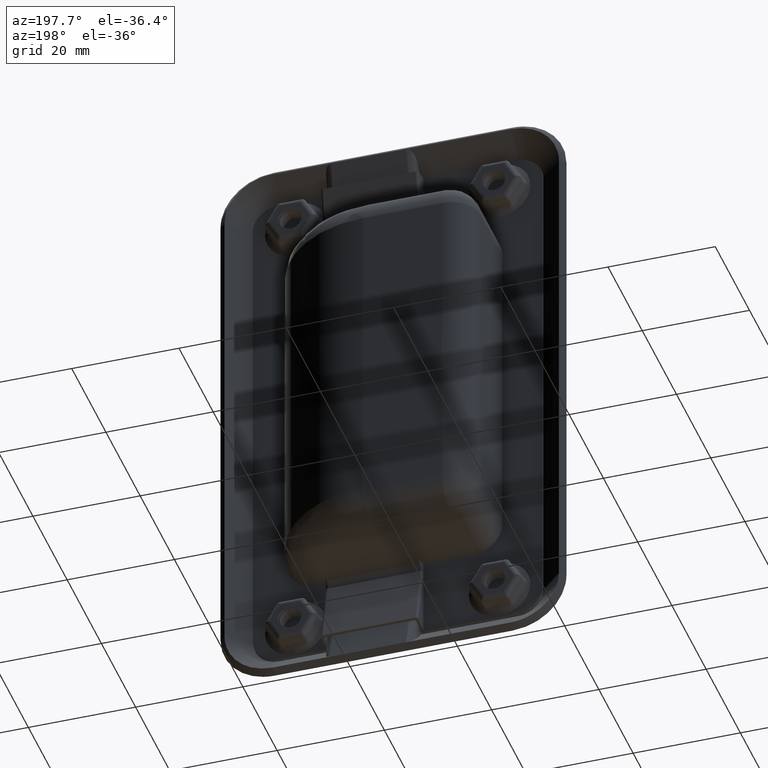
[diagram: clean part render]
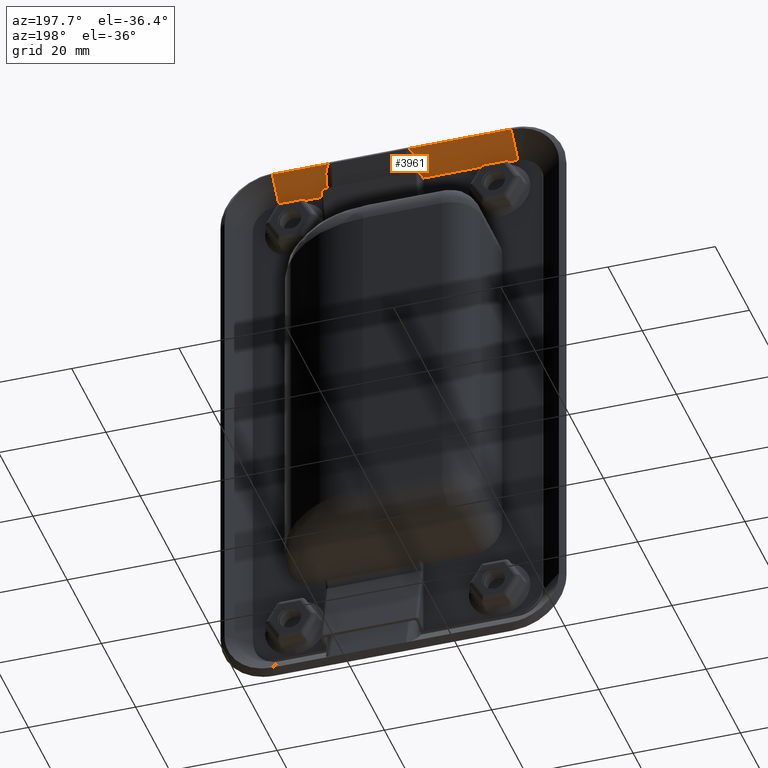
[diagram: same view with one face highlighted and labeled with its STEP entity id]
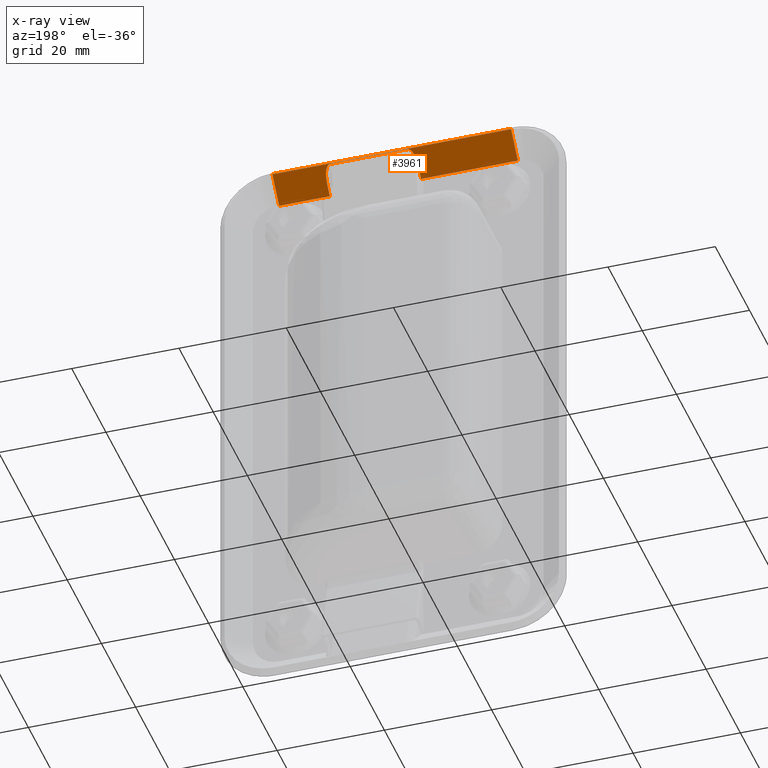
[diagram: x-ray of the same camera — body ghosted, the highlighted face saturated]
A machine part, auxiliary view. The second image highlights one B-rep face of the part: STEP entity #3961.
The next image is the same camera in x-ray: the body ghosted, the highlighted face saturated — about 0% of this face is hidden behind the body in this view.
In plain terms, the highlighted face is a freeform B-spline surface patch.
Its self-contained STEP definition (entity closure, byte-faithful):
#1518=CARTESIAN_POINT('',(29.110304426044902,-0.087398759739977,54.338652621071702));
#1519=VERTEX_POINT('',#1518);
#1555=CARTESIAN_POINT('',(28.050000000000001,-2.025224552313845,52.313624667832002));
#1556=VERTEX_POINT('',#1555);
#1562=CARTESIAN_POINT('',(29.110304426044902,-0.087398759739980,54.338652621071681));
#1563=CARTESIAN_POINT('',(28.049999999999994,-0.526670486464294,53.879613666644772));
#1564=CARTESIAN_POINT('',(28.050000000000001,-2.025224552313845,52.313624667832002));
#1572=(BOUNDED_CURVE()B_SPLINE_CURVE(2,(#1562,#1563,#1564),.UNSPECIFIED.,.F.,.U.)CURVE()GEOMETRIC_REPRESENTATION_ITEM()QUASI_UNIFORM_CURVE()RATIONAL_B_SPLINE_CURVE((1.0,0.804092775317853,1.0))REPRESENTATION_ITEM(''));
#1573=EDGE_CURVE('',#1519,#1556,#1572,.T.);
#1592=CARTESIAN_POINT('',(45.049999999999997,-2.025224552313840,52.313624667832002));
#1593=VERTEX_POINT('',#1592);
#1594=CARTESIAN_POINT('',(43.989695573955053,-0.087398759739977,54.338652621071702));
#1595=VERTEX_POINT('',#1594);
#1596=CARTESIAN_POINT('',(45.049999999999997,-2.025224552313840,52.313624667832002));
#1597=CARTESIAN_POINT('',(45.050000000000004,-0.526670486464237,53.879613666644829));
#1598=CARTESIAN_POINT('',(43.989695573955053,-0.087398759739956,54.338652621071702));
#1606=(BOUNDED_CURVE()B_SPLINE_CURVE(2,(#1596,#1597,#1598),.UNSPECIFIED.,.F.,.U.)CURVE()GEOMETRIC_REPRESENTATION_ITEM()QUASI_UNIFORM_CURVE()RATIONAL_B_SPLINE_CURVE((1.0,0.804092775317844,1.0))REPRESENTATION_ITEM(''));
#1607=EDGE_CURVE('',#1593,#1595,#1606,.T.);
#1822=CARTESIAN_POINT('',(10.0,0.000015000000019,54.430000000000000));
#1823=VERTEX_POINT('',#1822);
#1902=CARTESIAN_POINT('',(54.500000000000000,0.000015000000019,54.430000000000000));
#1903=VERTEX_POINT('',#1902);
#1909=CARTESIAN_POINT('',(54.500000000000000,0.000015000000019,54.430000000000000));
#1910=CARTESIAN_POINT('',(10.0,0.000015000000019,54.430000000000000));
#1911=QUASI_UNIFORM_CURVE('',1,(#1909,#1910),.UNSPECIFIED.,.F.,.U.);
#1912=EDGE_CURVE('',#1903,#1823,#1911,.T.);
#3533=CARTESIAN_POINT('',(29.110304426044902,-0.087398759739977,54.338652621071702));
#3534=CARTESIAN_POINT('',(43.989695573955053,-0.087398759739977,54.338652621071702));
#3535=QUASI_UNIFORM_CURVE('',1,(#3533,#3534),.UNSPECIFIED.,.F.,.U.);
#3536=EDGE_CURVE('',#1519,#1595,#3535,.T.);
#3553=CARTESIAN_POINT('',(28.050000000000001,-3.999985000000000,50.250000000000000));
#3554=VERTEX_POINT('',#3553);
#3555=CARTESIAN_POINT('',(28.050000000000001,-2.025224552313845,52.313624667832002));
#3556=CARTESIAN_POINT('',(28.050000000000001,-3.999985000000000,50.250000000000000));
#3557=QUASI_UNIFORM_CURVE('',1,(#3555,#3556),.UNSPECIFIED.,.F.,.U.);
#3558=EDGE_CURVE('',#1556,#3554,#3557,.T.);
#3574=CARTESIAN_POINT('',(45.049999999999997,-3.999985000000000,50.250000000000000));
#3575=VERTEX_POINT('',#3574);
#3582=CARTESIAN_POINT('',(45.049999999999997,-2.025224552313840,52.313624667832002));
#3583=CARTESIAN_POINT('',(45.049999999999997,-3.999985000000000,50.250000000000000));
#3584=QUASI_UNIFORM_CURVE('',1,(#3582,#3583),.UNSPECIFIED.,.F.,.U.);
#3585=EDGE_CURVE('',#1593,#3575,#3584,.T.);
#3866=CARTESIAN_POINT('',(54.500000000000000,-3.999985000000000,50.250000000000000));
#3867=VERTEX_POINT('',#3866);
#3868=CARTESIAN_POINT('',(54.500000000000000,-3.999985000000000,50.250000000000000));
#3869=CARTESIAN_POINT('',(54.500000000000000,0.000015000000019,54.430000000000000));
#3870=QUASI_UNIFORM_CURVE('',1,(#3868,#3869),.UNSPECIFIED.,.F.,.U.);
#3871=EDGE_CURVE('',#3867,#1903,#3870,.T.);
#3930=CARTESIAN_POINT('',(7.777225086249642,-4.199784992247217,50.041209008101653));
#3931=CARTESIAN_POINT('',(7.777225086249642,0.199815099535606,54.638791104014693));
#3932=CARTESIAN_POINT('',(56.722776107333381,-4.199784992247217,50.041209008101653));
#3933=CARTESIAN_POINT('',(56.722776107333381,0.199815099535606,54.638791104014693));
#3934=B_SPLINE_SURFACE_WITH_KNOTS('',1,1,((#3930,#3932),(#3931,#3933)),.UNSPECIFIED.,.F.,.F.,.U.,(2,2),(2,2),(0.0,6.363508630957896),(0.0,48.945551021083737),.UNSPECIFIED.);
#3935=ORIENTED_EDGE('',*,*,#3585,.F.);
#3936=ORIENTED_EDGE('',*,*,#1607,.T.);
#3937=ORIENTED_EDGE('',*,*,#3536,.F.);
#3938=ORIENTED_EDGE('',*,*,#1573,.T.);
#3939=ORIENTED_EDGE('',*,*,#3558,.T.);
#3940=CARTESIAN_POINT('',(10.0,-3.999985000000000,50.250000000000000));
#3941=VERTEX_POINT('',#3940);
#3942=CARTESIAN_POINT('',(28.050000000000001,-3.999985000000000,50.250000000000000));
#3943=CARTESIAN_POINT('',(10.0,-3.999985000000000,50.250000000000000));
#3944=QUASI_UNIFORM_CURVE('',1,(#3942,#3943),.UNSPECIFIED.,.F.,.U.);
#3945=EDGE_CURVE('',#3554,#3941,#3944,.T.);
#3946=ORIENTED_EDGE('',*,*,#3945,.T.);
#3947=CARTESIAN_POINT('',(10.0,-3.999985000000000,50.250000000000000));
#3948=CARTESIAN_POINT('',(10.0,0.000015000000019,54.430000000000000));
#3949=QUASI_UNIFORM_CURVE('',1,(#3947,#3948),.UNSPECIFIED.,.F.,.U.);
#3950=EDGE_CURVE('',#3941,#1823,#3949,.T.);
#3951=ORIENTED_EDGE('',*,*,#3950,.T.);
#3952=ORIENTED_EDGE('',*,*,#1912,.F.);
#3953=ORIENTED_EDGE('',*,*,#3871,.F.);
#3954=CARTESIAN_POINT('',(54.500000000000000,-3.999985000000000,50.250000000000000));
#3955=CARTESIAN_POINT('',(45.049999999999997,-3.999985000000000,50.250000000000000));
#3956=QUASI_UNIFORM_CURVE('',1,(#3954,#3955),.UNSPECIFIED.,.F.,.U.);
#3957=EDGE_CURVE('',#3867,#3575,#3956,.T.);
#3958=ORIENTED_EDGE('',*,*,#3957,.T.);
#3959=EDGE_LOOP('',(#3935,#3936,#3937,#3938,#3939,#3946,#3951,#3952,#3953,#3958));
#3960=FACE_OUTER_BOUND('',#3959,.T.);
#3961=ADVANCED_FACE('',(#3960),#3934,.T.);